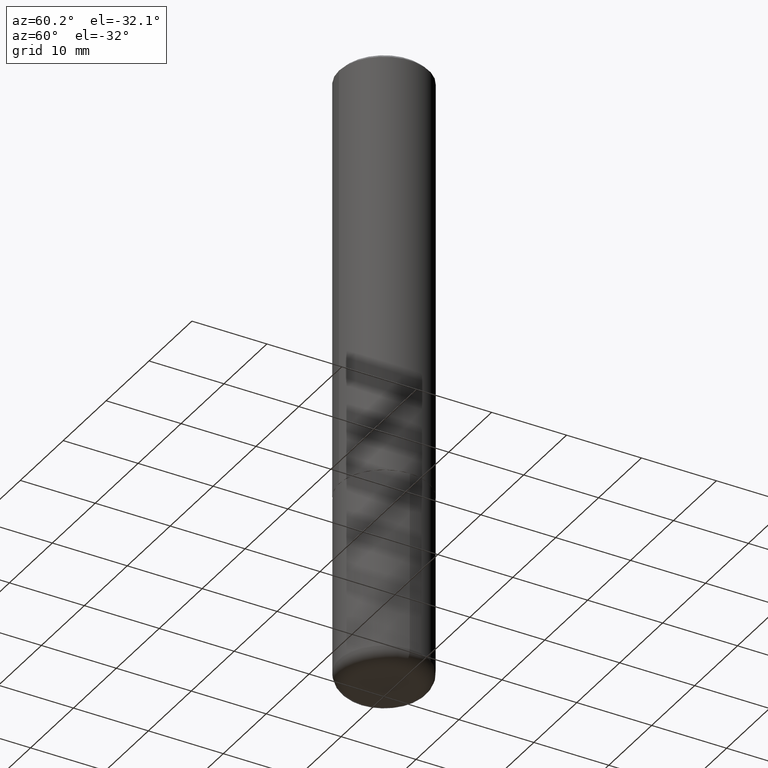
[diagram: clean part render]
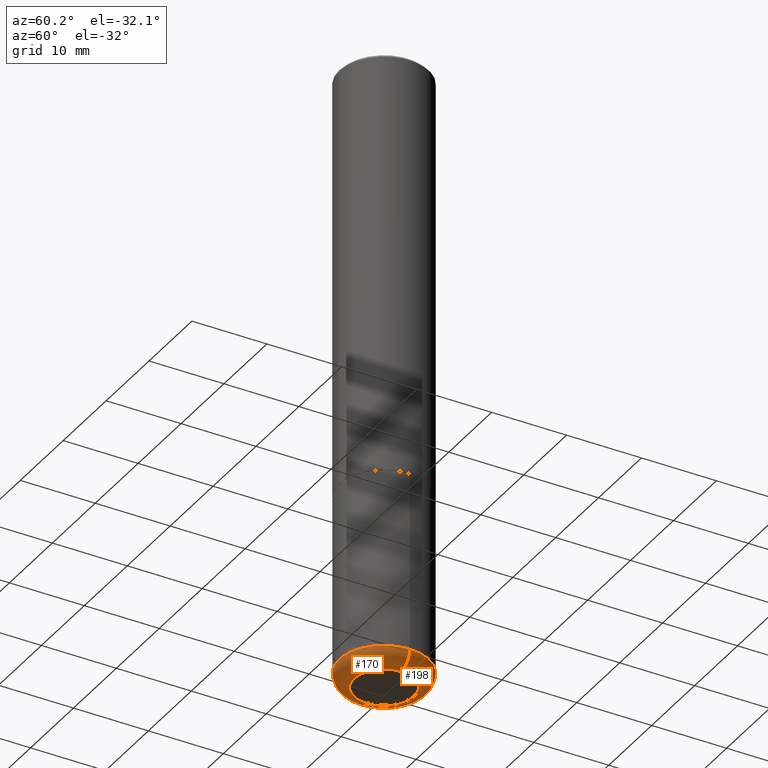
[diagram: same view with one multi-face feature highlighted, each face labeled with its STEP entity id]
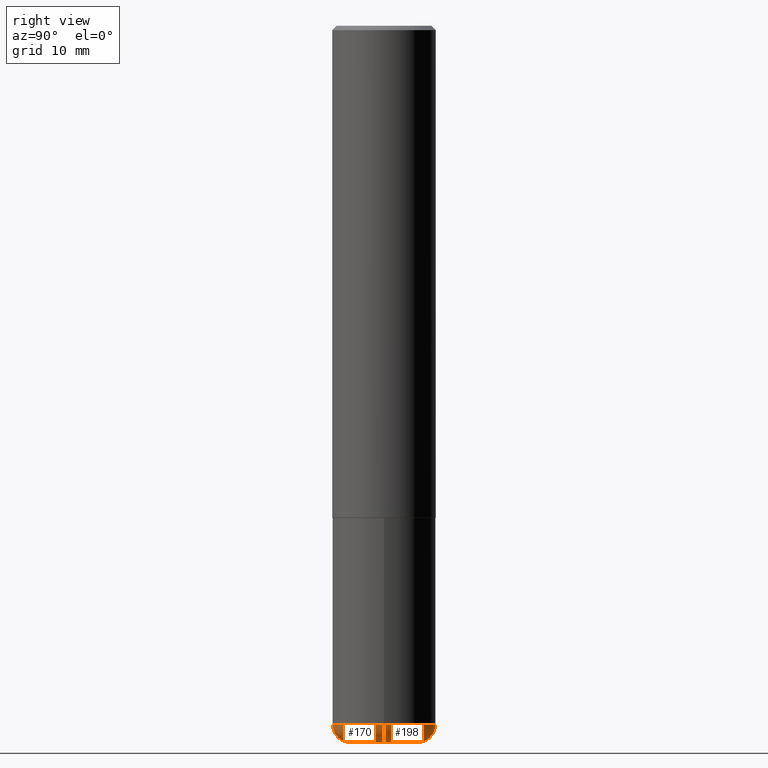
[diagram: same view with one multi-face feature highlighted, each face labeled with its STEP entity id]
A machine part, auxiliary view. The highlighted faces form ONE feature: a constant-radius fillet chain: 2 tangent blend faces with common blend radius 1.999 mm. The faces share edges in the B-rep.
A second angle (right view) of the same feature is appended — it is thin or edge-on in the first view.
Their STEP definitions:
[1] entity #198 (Torus):
#5 = CIRCLE ( 'NONE', #396, 0.07870000000000021423 ) ;
#6 = CARTESIAN_POINT ( 'NONE',  ( 0.2362000000000001043, -1.278370977404028805E-14, -3.189000000000000501 ) ) ;
#10 = CARTESIAN_POINT ( 'NONE',  ( 7.798600022924401307E-29, -1.113433398957079310E-14, -3.189000000000000501 ) ) ;
#15 = CARTESIAN_POINT ( 'NONE',  ( 7.798600022924401307E-29, -1.113433398957079310E-14, -3.189000000000000501 ) ) ;
#16 = CARTESIAN_POINT ( 'NONE',  ( 7.991058417971172834E-29, -1.140911357093774960E-14, -3.267700000000000937 ) ) ;
#33 = VERTEX_POINT ( 'NONE', #291 ) ;
#35 = AXIS2_PLACEMENT_3D ( 'NONE', #16, #308, #302 ) ;
#46 = CARTESIAN_POINT ( 'NONE',  ( -0.2362000000000001043, -9.456032047705438285E-15, -3.189000000000000501 ) ) ;
#55 = VERTEX_POINT ( 'NONE', #6 ) ;
#58 = VERTEX_POINT ( 'NONE', #362 ) ;
#76 = DIRECTION ( 'NONE',  ( -1.000000000000000000, 7.105427357600997914E-15, 0.000000000000000000 ) ) ;
#81 = DIRECTION ( 'NONE',  ( 1.000000000000000000, -6.982962677686266711E-15, 4.883557194083113462E-29 ) ) ;
#85 = ORIENTED_EDGE ( 'NONE', *, *, #259, .T. ) ;
#103 = TOROIDAL_SURFACE ( 'NONE', #174, 0.1575000000000000011, 0.07870000000000022811 ) ;
#133 = FACE_OUTER_BOUND ( 'NONE', #257, .T. ) ;
#146 = DIRECTION ( 'NONE',  ( 1.000000000000000000, -6.982962677686276177E-15, 0.000000000000000000 ) ) ;
#149 = EDGE_CURVE ( 'NONE', #55, #290, #306, .T. ) ;
#173 = DIRECTION ( 'NONE',  ( -2.445468806185136597E-29, 3.491481338843145583E-15, 1.000000000000000000 ) ) ;
#174 = AXIS2_PLACEMENT_3D ( 'NONE', #15, #173, #81 ) ;
#198 = ADVANCED_FACE ( 'NONE', ( #133 ), #103, .T. ) ;
#215 = CIRCLE ( 'NONE', #35, 0.1575000000000000011 ) ;
#232 = EDGE_CURVE ( 'NONE', #58, #290, #5, .T. ) ;
#241 = CARTESIAN_POINT ( 'NONE',  ( -0.1575000000000000011, -1.001522918074863550E-14, -3.189000000000000501 ) ) ;
#257 = EDGE_LOOP ( 'NONE', ( #85, #403, #381, #417 ) ) ;
#259 = EDGE_CURVE ( 'NONE', #33, #58, #215, .T. ) ;
#274 = DIRECTION ( 'NONE',  ( -6.982962677686266711E-15, -1.000000000000000000, 3.491481338843145583E-15 ) ) ;
#286 = EDGE_CURVE ( 'NONE', #33, #55, #313, .T. ) ;
#290 = VERTEX_POINT ( 'NONE', #46 ) ;
#291 = CARTESIAN_POINT ( 'NONE',  ( 0.1575000000000000011, -1.250893019267333471E-14, -3.267700000000000937 ) ) ;
#299 = DIRECTION ( 'NONE',  ( 1.000000000000000000, -6.982962677686265133E-15, 0.000000000000000000 ) ) ;
#302 = DIRECTION ( 'NONE',  ( 1.000000000000000000, -6.982962677686261977E-15, 0.000000000000000000 ) ) ;
#306 = CIRCLE ( 'NONE', #401, 0.2361999999999999933 ) ;
#308 = DIRECTION ( 'NONE',  ( -2.445468806185136597E-29, 3.491481338843145583E-15, 1.000000000000000000 ) ) ;
#313 = CIRCLE ( 'NONE', #357, 0.07870000000000021423 ) ;
#336 = DIRECTION ( 'NONE',  ( 7.105427357601001859E-15, 1.000000000000000000, -3.491481338843145583E-15 ) ) ;
#340 = CARTESIAN_POINT ( 'NONE',  ( 0.1575000000000000011, -1.223415061130637979E-14, -3.189000000000000501 ) ) ;
#357 = AXIS2_PLACEMENT_3D ( 'NONE', #340, #274, #146 ) ;
#362 = CARTESIAN_POINT ( 'NONE',  ( -0.1575000000000000011, -9.873020404910514350E-15, -3.267700000000000937 ) ) ;
#381 = ORIENTED_EDGE ( 'NONE', *, *, #149, .F. ) ;
#394 = DIRECTION ( 'NONE',  ( -2.445468806185136597E-29, 3.491481338843145583E-15, 1.000000000000000000 ) ) ;
#396 = AXIS2_PLACEMENT_3D ( 'NONE', #241, #336, #76 ) ;
#401 = AXIS2_PLACEMENT_3D ( 'NONE', #10, #394, #299 ) ;
#403 = ORIENTED_EDGE ( 'NONE', *, *, #232, .T. ) ;
#417 = ORIENTED_EDGE ( 'NONE', *, *, #286, .F. ) ;
[2] entity #170 (Torus):
#5 = CIRCLE ( 'NONE', #396, 0.07870000000000021423 ) ;
#6 = CARTESIAN_POINT ( 'NONE',  ( 0.2362000000000001043, -1.278370977404028805E-14, -3.189000000000000501 ) ) ;
#18 = CIRCLE ( 'NONE', #352, 0.1575000000000000011 ) ;
#33 = VERTEX_POINT ( 'NONE', #291 ) ;
#41 = CARTESIAN_POINT ( 'NONE',  ( 7.798600022924401307E-29, -1.113433398957079310E-14, -3.189000000000000501 ) ) ;
#46 = CARTESIAN_POINT ( 'NONE',  ( -0.2362000000000001043, -9.456032047705438285E-15, -3.189000000000000501 ) ) ;
#55 = VERTEX_POINT ( 'NONE', #6 ) ;
#58 = VERTEX_POINT ( 'NONE', #362 ) ;
#65 = DIRECTION ( 'NONE',  ( -2.445468806185136597E-29, 3.491481338843145583E-15, 1.000000000000000000 ) ) ;
#66 = EDGE_CURVE ( 'NONE', #290, #55, #331, .T. ) ;
#76 = DIRECTION ( 'NONE',  ( -1.000000000000000000, 7.105427357600997914E-15, 0.000000000000000000 ) ) ;
#84 = DIRECTION ( 'NONE',  ( 1.000000000000000000, -6.982962677686261977E-15, 0.000000000000000000 ) ) ;
#100 = DIRECTION ( 'NONE',  ( -2.445468806185136597E-29, 3.491481338843145583E-15, 1.000000000000000000 ) ) ;
#122 = CARTESIAN_POINT ( 'NONE',  ( 7.991058417971172834E-29, -1.140911357093774960E-14, -3.267700000000000937 ) ) ;
#146 = DIRECTION ( 'NONE',  ( 1.000000000000000000, -6.982962677686276177E-15, 0.000000000000000000 ) ) ;
#169 = CARTESIAN_POINT ( 'NONE',  ( 7.798600022924401307E-29, -1.113433398957079310E-14, -3.189000000000000501 ) ) ;
#170 = ADVANCED_FACE ( 'NONE', ( #329 ), #189, .T. ) ;
#189 = TOROIDAL_SURFACE ( 'NONE', #365, 0.1575000000000000011, 0.07870000000000022811 ) ;
#192 = ORIENTED_EDGE ( 'NONE', *, *, #286, .T. ) ;
#196 = DIRECTION ( 'NONE',  ( 1.000000000000000000, -6.982962677686266711E-15, 4.883557194083113462E-29 ) ) ;
#227 = ORIENTED_EDGE ( 'NONE', *, *, #66, .F. ) ;
#232 = EDGE_CURVE ( 'NONE', #58, #290, #5, .T. ) ;
#236 = DIRECTION ( 'NONE',  ( 1.000000000000000000, -6.982962677686265133E-15, 0.000000000000000000 ) ) ;
#241 = CARTESIAN_POINT ( 'NONE',  ( -0.1575000000000000011, -1.001522918074863550E-14, -3.189000000000000501 ) ) ;
#274 = DIRECTION ( 'NONE',  ( -6.982962677686266711E-15, -1.000000000000000000, 3.491481338843145583E-15 ) ) ;
#277 = EDGE_LOOP ( 'NONE', ( #323, #412, #192, #227 ) ) ;
#286 = EDGE_CURVE ( 'NONE', #33, #55, #313, .T. ) ;
#290 = VERTEX_POINT ( 'NONE', #46 ) ;
#291 = CARTESIAN_POINT ( 'NONE',  ( 0.1575000000000000011, -1.250893019267333471E-14, -3.267700000000000937 ) ) ;
#313 = CIRCLE ( 'NONE', #357, 0.07870000000000021423 ) ;
#323 = ORIENTED_EDGE ( 'NONE', *, *, #232, .F. ) ;
#329 = FACE_OUTER_BOUND ( 'NONE', #277, .T. ) ;
#331 = CIRCLE ( 'NONE', #408, 0.2361999999999999933 ) ;
#336 = DIRECTION ( 'NONE',  ( 7.105427357601001859E-15, 1.000000000000000000, -3.491481338843145583E-15 ) ) ;
#340 = CARTESIAN_POINT ( 'NONE',  ( 0.1575000000000000011, -1.223415061130637979E-14, -3.189000000000000501 ) ) ;
#352 = AXIS2_PLACEMENT_3D ( 'NONE', #122, #378, #84 ) ;
#357 = AXIS2_PLACEMENT_3D ( 'NONE', #340, #274, #146 ) ;
#362 = CARTESIAN_POINT ( 'NONE',  ( -0.1575000000000000011, -9.873020404910514350E-15, -3.267700000000000937 ) ) ;
#365 = AXIS2_PLACEMENT_3D ( 'NONE', #41, #65, #196 ) ;
#378 = DIRECTION ( 'NONE',  ( -2.445468806185136597E-29, 3.491481338843145583E-15, 1.000000000000000000 ) ) ;
#386 = EDGE_CURVE ( 'NONE', #58, #33, #18, .T. ) ;
#396 = AXIS2_PLACEMENT_3D ( 'NONE', #241, #336, #76 ) ;
#408 = AXIS2_PLACEMENT_3D ( 'NONE', #169, #100, #236 ) ;
#412 = ORIENTED_EDGE ( 'NONE', *, *, #386, .T. ) ;